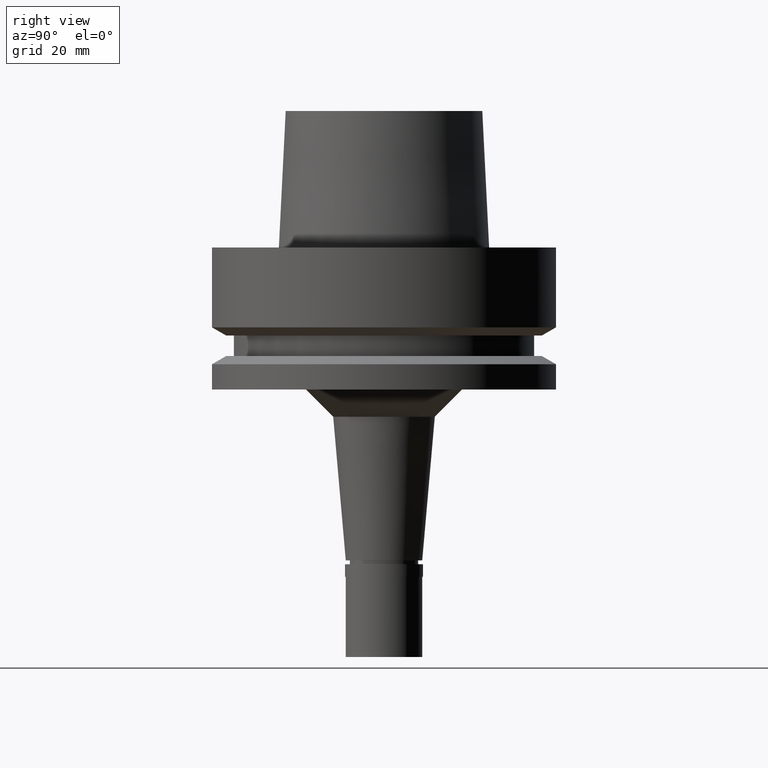
[diagram: clean part render]
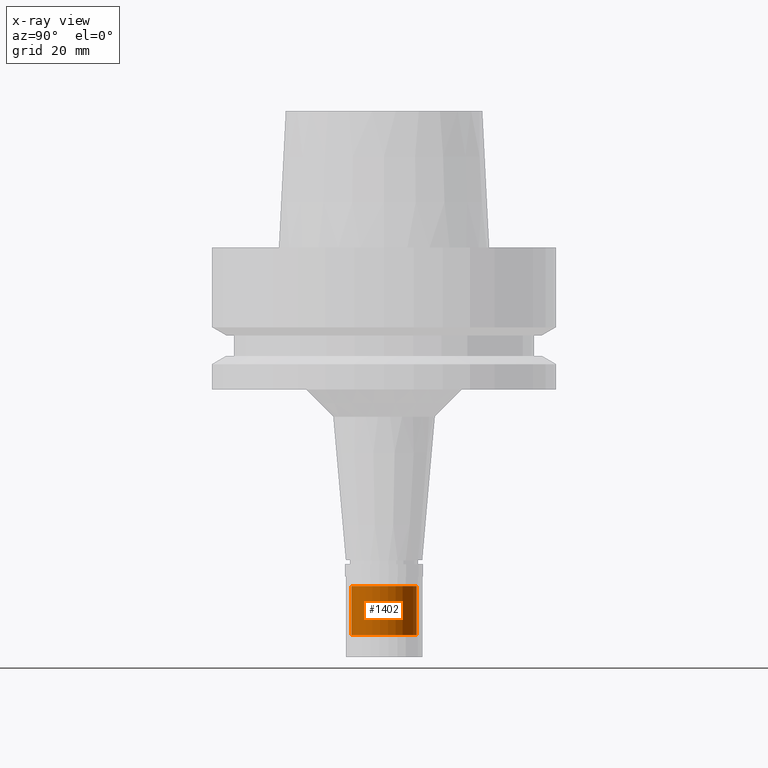
[diagram: x-ray — body ghosted, one internal face saturated and labeled with its STEP entity id]
A machine part, right view, then the same camera in x-ray: the body is ghosted and one INTERNAL B-rep face — a face not visible from any outside direction — is saturated and labeled: STEP entity #1402.
In plain terms, the highlighted cylindrical surface (edge-blend (fillet) strip) has radius 6 mm, axis along (0, 0, -1).
Its self-contained STEP definition (entity closure, byte-faithful):
#58 = AXIS2_PLACEMENT_3D ( 'NONE', #648, #1637, #1683 ) ;
#114 = EDGE_CURVE ( 'NONE', #2345, #2086, #583, .T. ) ;
#287 = CARTESIAN_POINT ( 'NONE',  ( 0.0000000000000000000, 1.589591545292999879E-14, -62.00000000000000000 ) ) ;
#362 = CARTESIAN_POINT ( 'NONE',  ( 0.0000000000000000000, 6.000000000000000000, -62.00000000000000000 ) ) ;
#583 = LINE ( 'NONE', #362, #1588 ) ;
#620 = DIRECTION ( 'NONE',  ( 0.0000000000000000000, -1.000000000000000000, 0.0000000000000000000 ) ) ;
#648 = CARTESIAN_POINT ( 'NONE',  ( 0.0000000000000000000, 1.589591545292999879E-14, -71.00000000000000000 ) ) ;
#670 = EDGE_CURVE ( 'NONE', #2643, #713, #2196, .T. ) ;
#713 = VERTEX_POINT ( 'NONE', #2350 ) ;
#814 = CARTESIAN_POINT ( 'NONE',  ( 0.0000000000000000000, 1.589591545292999879E-14, 29.80000000000000071 ) ) ;
#907 = AXIS2_PLACEMENT_3D ( 'NONE', #814, #1856, #620 ) ;
#911 = CARTESIAN_POINT ( 'NONE',  ( 0.0000000000000000000, 6.000000000000000000, -71.00000000000000000 ) ) ;
#914 = DIRECTION ( 'NONE',  ( 0.0000000000000000000, 0.0000000000000000000, -1.000000000000000000 ) ) ;
#931 = EDGE_CURVE ( 'NONE', #713, #2086, #1187, .T. ) ;
#932 = DIRECTION ( 'NONE',  ( 0.0000000000000000000, 1.000000000000000000, 0.0000000000000000000 ) ) ;
#1084 = ORIENTED_EDGE ( 'NONE', *, *, #1562, .T. ) ;
#1187 = CIRCLE ( 'NONE', #58, 6.000000000000000000 ) ;
#1208 = CARTESIAN_POINT ( 'NONE',  ( 0.0000000000000000000, -6.000000000000000000, -62.00000000000000000 ) ) ;
#1357 = AXIS2_PLACEMENT_3D ( 'NONE', #287, #914, #932 ) ;
#1402 = ADVANCED_FACE ( 'NONE', ( #2468 ), #2077, .T. ) ;
#1408 = EDGE_LOOP ( 'NONE', ( #1084, #1513, #2113, #2033 ) ) ;
#1513 = ORIENTED_EDGE ( 'NONE', *, *, #670, .T. ) ;
#1562 = EDGE_CURVE ( 'NONE', #2345, #2643, #1640, .T. ) ;
#1588 = VECTOR ( 'NONE', #2237, 1000.000000000000000 ) ;
#1637 = DIRECTION ( 'NONE',  ( 0.0000000000000000000, 0.0000000000000000000, 1.000000000000000000 ) ) ;
#1640 = CIRCLE ( 'NONE', #1357, 6.000000000000000000 ) ;
#1683 = DIRECTION ( 'NONE',  ( 0.0000000000000000000, -1.000000000000000000, 0.0000000000000000000 ) ) ;
#1719 = CARTESIAN_POINT ( 'NONE',  ( 0.0000000000000000000, -6.000000000000000000, -62.00000000000000000 ) ) ;
#1856 = DIRECTION ( 'NONE',  ( 0.0000000000000000000, 0.0000000000000000000, -1.000000000000000000 ) ) ;
#1981 = CARTESIAN_POINT ( 'NONE',  ( 0.0000000000000000000, 6.000000000000000000, -62.00000000000000000 ) ) ;
#2033 = ORIENTED_EDGE ( 'NONE', *, *, #114, .F. ) ;
#2077 = CYLINDRICAL_SURFACE ( 'NONE', #907, 6.000000000000000000 ) ;
#2086 = VERTEX_POINT ( 'NONE', #911 ) ;
#2113 = ORIENTED_EDGE ( 'NONE', *, *, #931, .T. ) ;
#2196 = LINE ( 'NONE', #1719, #2623 ) ;
#2237 = DIRECTION ( 'NONE',  ( 0.0000000000000000000, 0.0000000000000000000, -1.000000000000000000 ) ) ;
#2345 = VERTEX_POINT ( 'NONE', #1981 ) ;
#2350 = CARTESIAN_POINT ( 'NONE',  ( 0.0000000000000000000, -6.000000000000000000, -71.00000000000000000 ) ) ;
#2380 = DIRECTION ( 'NONE',  ( 0.0000000000000000000, 0.0000000000000000000, -1.000000000000000000 ) ) ;
#2468 = FACE_OUTER_BOUND ( 'NONE', #1408, .T. ) ;
#2623 = VECTOR ( 'NONE', #2380, 1000.000000000000000 ) ;
#2643 = VERTEX_POINT ( 'NONE', #1208 ) ;